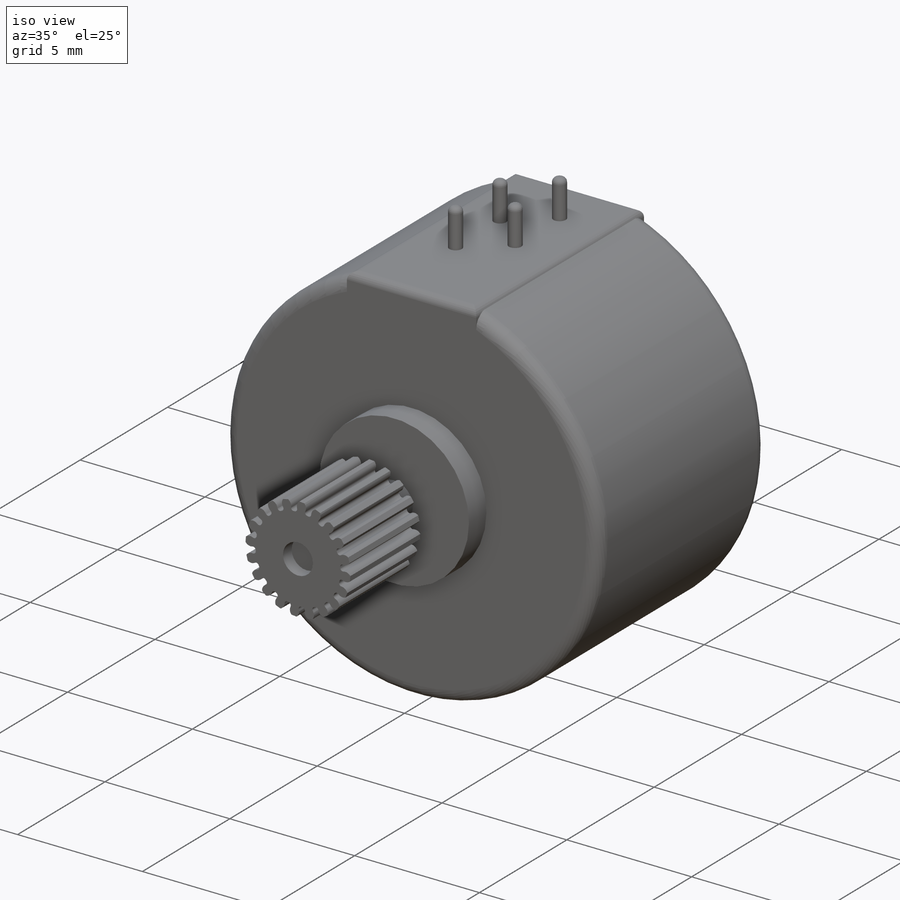
[diagram: iso view]
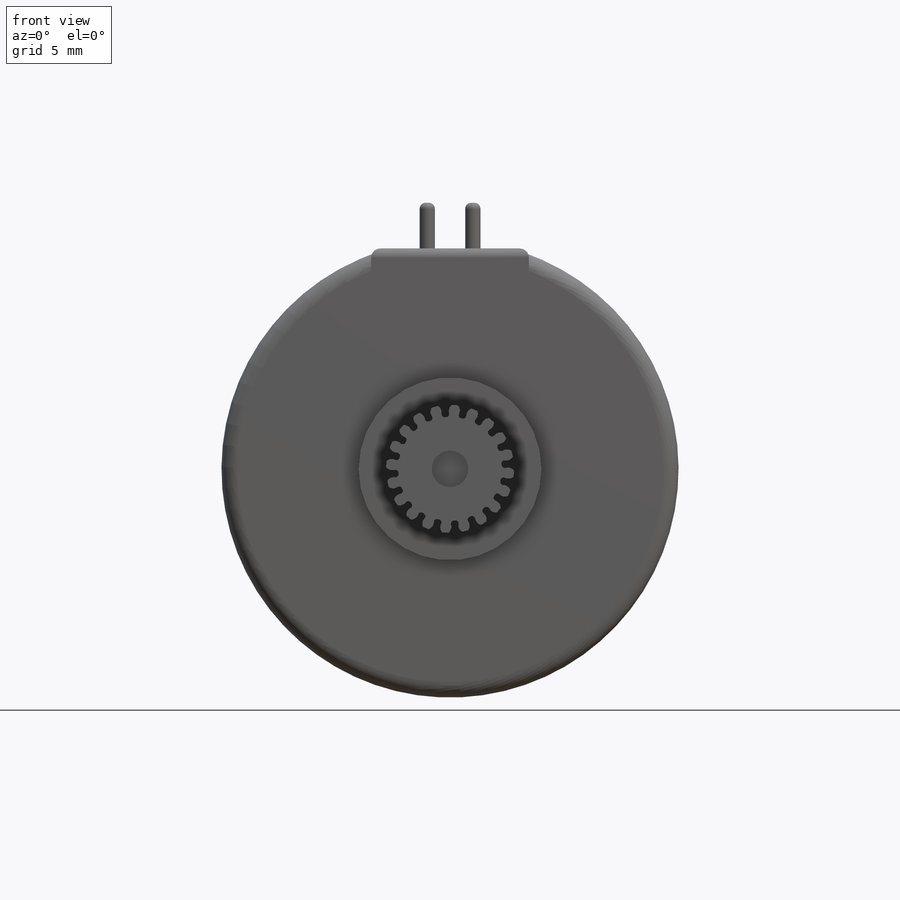
[diagram: front view]
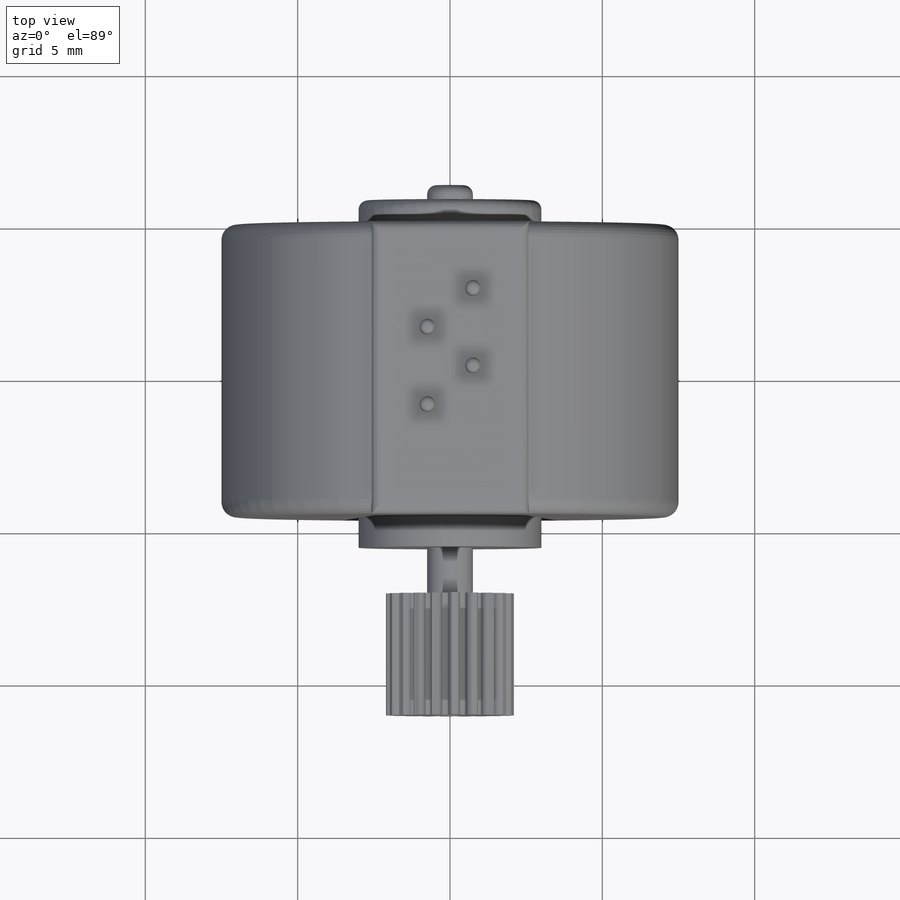
[diagram: top view]
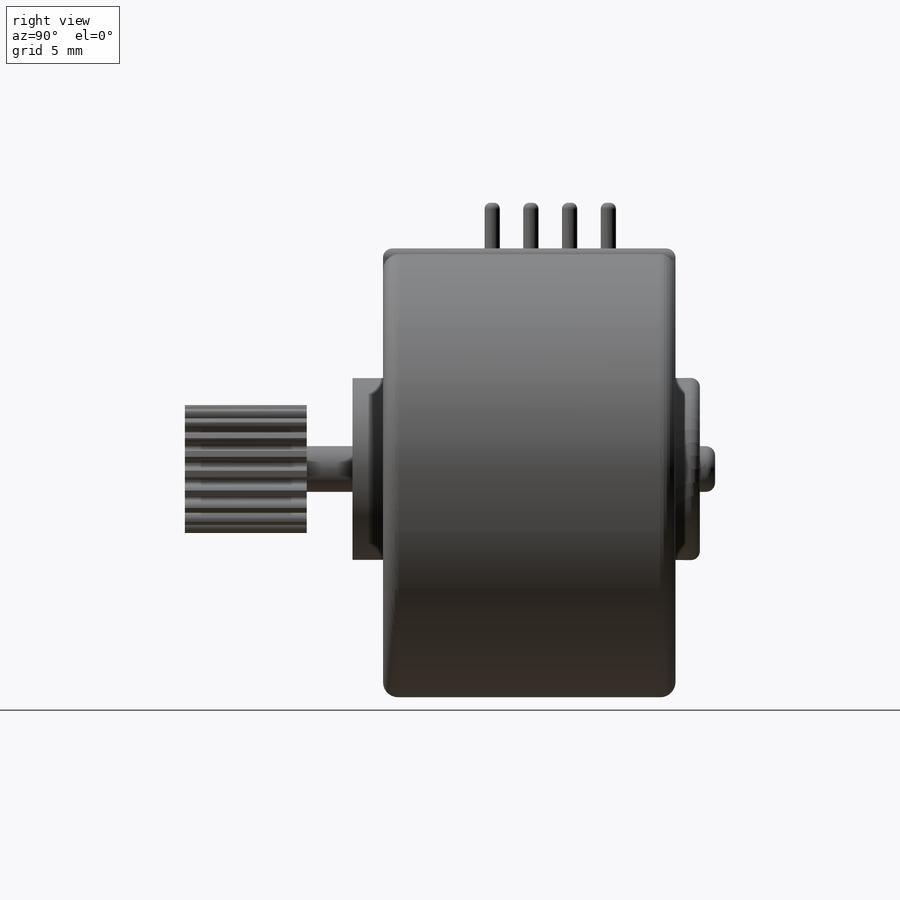
[diagram: right view]
SOLIDWORKS PART (.sldprt)
format: sldprt  version: not decoded by parser v0  size: 624,128 bytes
history: native  units: mm
features: sketch x9, fillet x9, extrude x7, plane x3, cut_extrude x2, material x1, pattern_circular x1 (+9 scaffold rows collapsed)
feature tree (41):
  scaffold x9  (default folders/planes/origin — collapsed)
  material  "Material <not specified>"
  plane  "Ön Düzlem"
  plane  "Üst Düzlem"
  plane  "Sağ Düzlem"
  sketch  "Çizim1"  dims[D1=0.2mm]
  extrude  "Yükseklik-Ekstrüzyon1"  Depth=9.6mm
  fillet  "Radyus1"  Radius=0.5mm
  fillet  "Radyus2"  Radius=0.5mm
  sketch  "Çizim2"  dims[D1=~2.255169mm]
  extrude  "Yükseklik-Ekstrüzyon2"  Depth=1mm
  sketch  "Çizim3"  dims[D1=~0.729591mm]
  extrude  "Yükseklik-Ekstrüzyon3"  Depth=1.5mm
  sketch  "Çizim4"  dims[D1=~4.125308mm]
  extrude  "Yükseklik-Ekstrüzyon4"  Depth=4mm
  sketch  "Çizim5"  dims[c1.D1=~2.976083mm c1.D2=4.2mm c1.D3=0.5mm c1.D4=0.5mm c1.D5=0.1mm c1.D6=0.1mm c2.D1=0.4mm c2.D4=0.4mm c2.D6=~0.730007mm]
  cut_extrude  "Kes-Ekstrüzyon1"  Depth=4mm
  pattern_circular  "Dairesel Çoğaltma1"  Count=20 Angle=18deg
  sketch  "Çizim6"  dims[D1=0.75mm]
  cut_extrude  "Kes-Ekstrüzyon2"  Depth=0.5mm
  sketch  "Çizim7"  dims[D1=~3.872922mm]
  extrude  "Yükseklik-Ekstrüzyon5"  Depth=0.8mm
  sketch  "Çizim8"  dims[D1=~1.048615mm]
  extrude  "Yükseklik-Ekstrüzyon6"  Depth=0.5mm
  fillet  "Radyus4"  Radius=0.3mm
  fillet  "Radyus5"  Radius=0.3mm
  fillet  "Radyus6"  Radius=0.3mm
  sketch  "Çizim9"  dims[c1.D5=0.5mm c1.D6=0.5mm c1.D7=0.5mm c1.D8=0.5mm c1.D1=2.54mm c1.D2=2.54mm c1.D3=1.27mm c1.D4=0.75mm c2.D5=~1.49767mm]
  extrude  "Yükseklik-Ekstrüzyon7"  Depth=1.5mm
  fillet  "Radyus7"  Radius=0.2mm
  fillet  "Radyus8"  Radius=0.2mm
  fillet  "Radyus9"  Radius=0.2mm
  fillet  "Radyus10"  Radius=0.2mm
decode coverage: 28 of 28 modeling features carry decoded parameters
note: ~ marks probable driven/reference dimensions
note: suppression state not decoded; provenance and decode notes live in map.json
